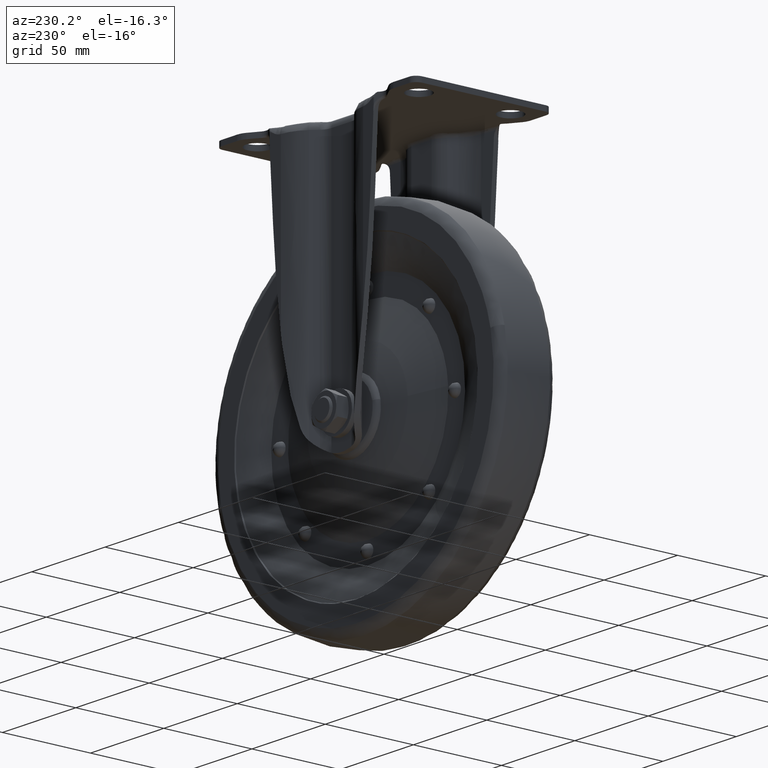
[diagram: clean part render]
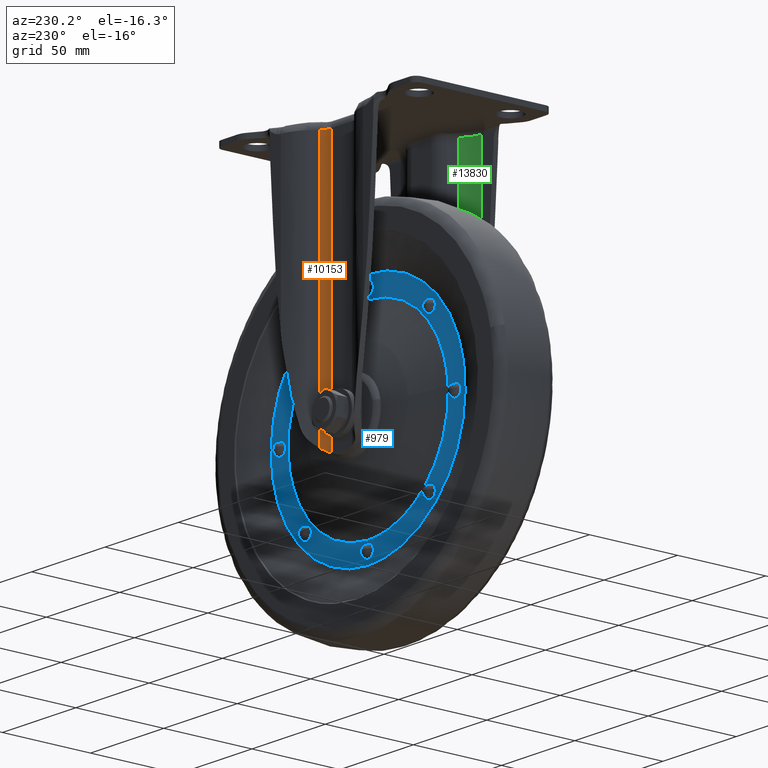
[diagram: same view with three faces highlighted in distinct colors, each labeled with its STEP entity id]
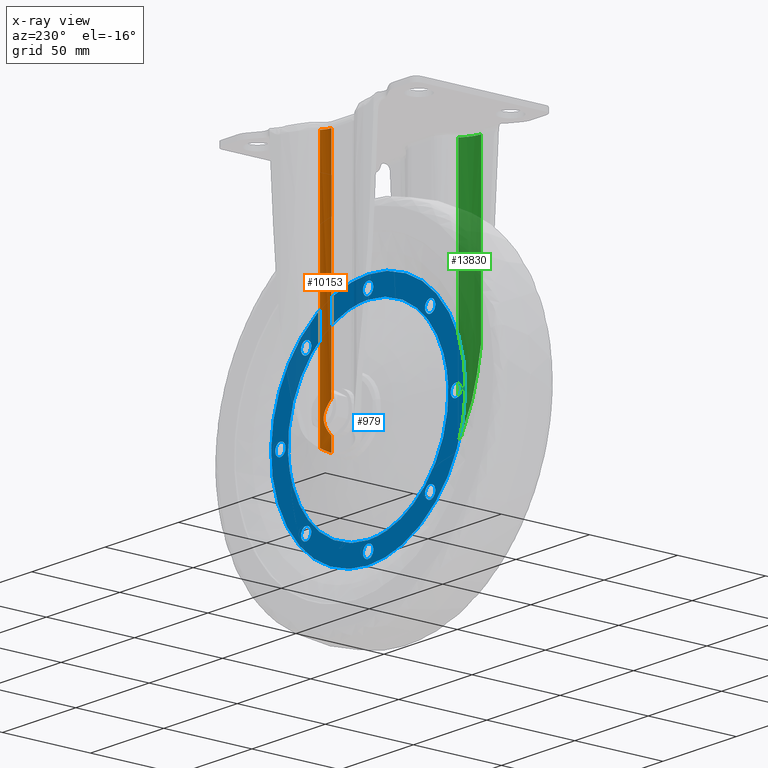
[diagram: x-ray of the same camera — body ghosted, the three highlighted faces saturated]
A machine part, auxiliary view with three faces highlighted in distinct colors.
The next image is the same camera in x-ray (body ghosted, the three faces saturated) — at least one of them is partly hidden behind the body in this view.
Their STEP definitions:

[orange] entity #10153 — the highlighted face is a freeform B-spline surface patch.
#6401=CARTESIAN_POINT('',(6.849839999999920,24.149999999999999,-127.714941643271200));
#6402=VERTEX_POINT('',#6401);
#6403=CARTESIAN_POINT('',(6.849839999999920,24.149999999999999,-144.285058356728800));
#6404=VERTEX_POINT('',#6403);
#6405=CARTESIAN_POINT('',(6.849839999999889,24.149999999999999,-127.714941643271200));
#6406=CARTESIAN_POINT('',(7.156355836577821,24.149999999999999,-127.968359826659100));
#6407=CARTESIAN_POINT('',(7.447116187730278,24.169678020017042,-128.237289490280690));
#6408=CARTESIAN_POINT('',(7.860202809812048,24.220708880656129,-128.663864076951910));
#6409=CARTESIAN_POINT('',(7.994045582492561,24.241326928974491,-128.809928640998890));
#6410=CARTESIAN_POINT('',(8.254000069798893,24.288626357566660,-129.109907564461990));
#6411=CARTESIAN_POINT('',(8.380356875495256,24.315385787115151,-129.264186107059690));
#6412=CARTESIAN_POINT('',(8.743291326134363,24.401957536736180,-129.733131768554810));
#6413=CARTESIAN_POINT('',(8.965308917489910,24.468230787571621,-130.055465480149110));
#6414=CARTESIAN_POINT('',(9.372063010136877,24.608390018432122,-130.719972577936010));
#6415=CARTESIAN_POINT('',(9.556789222945078,24.682318269051329,-131.062143316347090));
#6416=CARTESIAN_POINT('',(9.806341493513585,24.792428004514569,-131.591348989473400));
#6417=CARTESIAN_POINT('',(9.884921466596325,24.829002732579472,-131.770417130202900));
#6418=CARTESIAN_POINT('',(9.995805296687326,24.882843663266492,-132.043232078573200));
#6419=CARTESIAN_POINT('',(10.031601260762081,24.900620245968192,-132.134873107345100));
#6420=CARTESIAN_POINT('',(10.100837227975919,24.935691365087639,-132.319603683679790));
#6421=CARTESIAN_POINT('',(10.134206280081351,24.952950621713121,-132.412514479551590));
#6422=CARTESIAN_POINT('',(10.294191434117231,25.037194643112731,-132.877957190488790));
#6423=CARTESIAN_POINT('',(10.400976379099619,25.098316213904930,-133.254925014710690));
#6424=CARTESIAN_POINT('',(10.573089556565430,25.200633238702771,-134.018706598634000));
#6425=CARTESIAN_POINT('',(10.638414859826220,25.241812869742599,-134.405522607085600));
#6426=CARTESIAN_POINT('',(10.704619813224200,25.284119250478639,-134.993746117573010));
#6427=CARTESIAN_POINT('',(10.721376763886630,25.294989798191750,-135.191155186461290));
#6428=CARTESIAN_POINT('',(10.738326512402381,25.306022167163398,-135.489357145907890));
#6429=CARTESIAN_POINT('',(10.742611197249779,25.308821797863189,-135.589105918465290));
#6430=CARTESIAN_POINT('',(10.748401789420649,25.312608585633161,-135.789314797160500));
#6431=CARTESIAN_POINT('',(10.749904378020601,25.313593529010411,-135.889964692815990));
#6432=CARTESIAN_POINT('',(10.750360261574659,25.313892147242569,-136.391260441356910));
#6433=CARTESIAN_POINT('',(10.728358175883820,25.299314148041251,-136.787901710736090));
#6434=CARTESIAN_POINT('',(10.641628918109070,25.243842546116539,-137.572956523588400));
#6435=CARTESIAN_POINT('',(10.576899266653220,25.202973407809129,-137.961371789590490));
#6436=CARTESIAN_POINT('',(10.447910644827621,25.126182268697260,-138.538204583200700));
#6437=CARTESIAN_POINT('',(10.399584989189680,25.098019458558269,-138.729516541222300));
#6438=CARTESIAN_POINT('',(10.318992281992649,25.052575914836019,-139.015075522805800));
#6439=CARTESIAN_POINT('',(10.290731123682029,25.036871221354669,-139.110166174041610));
#6440=CARTESIAN_POINT('',(10.231768655031710,25.004672686759449,-139.298968153829410));
#6441=CARTESIAN_POINT('',(10.201062292616170,24.988175181632670,-139.392715282543690));
#6442=CARTESIAN_POINT('',(10.041472714710650,24.904044234878430,-139.858283024814910));
#6443=CARTESIAN_POINT('',(9.894496385007287,24.831487584678730,-140.220638924831690));
#6444=CARTESIAN_POINT('',(9.562350541303267,24.684614101538440,-140.927098920456590));
#6445=CARTESIAN_POINT('',(9.377183228755502,24.610272090883150,-141.271199009284690));
#6446=CARTESIAN_POINT('',(9.120842081233677,24.521796150455451,-141.690553795371610));
#6447=CARTESIAN_POINT('',(9.068324553735494,24.504325196365070,-141.773884131682910));
#6448=CARTESIAN_POINT('',(8.960743800522836,24.469980476100751,-141.939471249141210));
#6449=CARTESIAN_POINT('',(8.905696643359883,24.453114533246101,-142.021694591576700));
#6450=CARTESIAN_POINT('',(8.737624198483355,24.403910541734160,-142.265411175428000));
#6451=CARTESIAN_POINT('',(8.621380082625073,24.372870514333581,-142.424408229628510));
#6452=CARTESIAN_POINT('',(8.260068230292715,24.286707440441401,-142.891199848423700));
#6453=CARTESIAN_POINT('',(8.002471619365663,24.238486617818420,-143.188832143311400));
#6454=CARTESIAN_POINT('',(7.590141820542380,24.187248297397929,-143.615204333760200));
#6455=CARTESIAN_POINT('',(7.448363840827089,24.173694954539400,-143.753972979078300));
#6456=CARTESIAN_POINT('',(7.228965452894769,24.159726363846239,-143.957040197036690));
#6457=CARTESIAN_POINT('',(7.154709829653092,24.156131922442022,-144.023881037366290));
#6458=CARTESIAN_POINT('',(7.003902627942009,24.151267616524070,-144.155849902165190));
#6459=CARTESIAN_POINT('',(6.927193133040529,24.149999999999999,-144.221105085428490));
#6460=CARTESIAN_POINT('',(6.849839999999918,24.149999999999999,-144.285058356728800));
#6461=B_SPLINE_CURVE_WITH_KNOTS('',3,(#6405,#6406,#6407,#6408,#6409,#6410,#6411,#6412,#6413,#6414,#6415,#6416,#6417,#6418,#6419,#6420,#6421,#6422,#6423,#6424,#6425,#6426,#6427,#6428,#6429,#6430,#6431,#6432,#6433,#6434,#6435,#6436,#6437,#6438,#6439,#6440,#6441,#6442,#6443,#6444,#6445,#6446,#6447,#6448,#6449,#6450,#6451,#6452,#6453,#6454,#6455,#6456,#6457,#6458,#6459,#6460),.UNSPECIFIED.,.F.,.U.,(4,2,2,2,2,2,2,2,2,2,2,2,2,2,2,2,2,2,2,2,2,2,2,2,2,2,2,4),(0.0,0.062500000000011,0.093750000000017,0.125000000000024,0.187500000000038,0.250000000000052,0.281250000000061,0.296875000000063,0.312500000000066,0.375000000000071,0.437500000000077,0.468750000000080,0.484375000000079,0.500000000000078,0.562500000000063,0.625000000000047,0.656250000000041,0.671875000000040,0.687500000000039,0.750000000000031,0.812500000000023,0.828125000000020,0.843750000000018,0.875000000000012,0.937500000000004,0.968750000000002,0.984375000000001,1.0),.UNSPECIFIED.);
#6462=EDGE_CURVE('',#6402,#6404,#6461,.T.);
#8485=CARTESIAN_POINT('',(6.849840000000000,24.149999999999402,-152.286718354286510));
#8486=VERTEX_POINT('',#8485);
#8500=CARTESIAN_POINT('',(11.970380567922980,26.323798931978150,-149.423246202314000));
#8501=VERTEX_POINT('',#8500);
#8502=CARTESIAN_POINT('',(11.970380567922980,26.323798931978150,-149.423246202314000));
#8503=CARTESIAN_POINT('',(11.808036436092470,26.155658390774651,-149.550723451067200));
#8504=CARTESIAN_POINT('',(11.637690369744620,25.995745176110091,-149.680191325374010));
#8505=CARTESIAN_POINT('',(11.369634462091881,25.767956006054881,-149.876343656285290));
#8506=CARTESIAN_POINT('',(11.278069331745410,25.693970609396100,-149.942133843306810));
#8507=CARTESIAN_POINT('',(11.092325544284900,25.551323331926909,-150.073033694714610));
#8508=CARTESIAN_POINT('',(10.997962244074920,25.482494811139091,-150.138281764127410));
#8509=CARTESIAN_POINT('',(10.710364492989431,25.283335342302440,-150.333224944834310));
#8510=CARTESIAN_POINT('',(10.512632716370220,25.160306213264629,-150.462114547865010));
#8511=CARTESIAN_POINT('',(10.104734646749700,24.933513009606681,-150.716848598501510));
#8512=CARTESIAN_POINT('',(9.894569735345506,24.829749228186760,-150.842695540200790));
#8513=CARTESIAN_POINT('',(9.569405677818399,24.688971124017019,-151.028597554499300));
#8514=CARTESIAN_POINT('',(9.459361993647672,24.644529036832040,-151.090087495253190));
#8515=CARTESIAN_POINT('',(9.291709866764080,24.581701735278799,-151.181536920963310));
#8516=CARTESIAN_POINT('',(9.235394506216533,24.561399025801240,-151.211889167415590));
#8517=CARTESIAN_POINT('',(9.121881155206379,24.522096677298030,-151.272320458684500));
#8518=CARTESIAN_POINT('',(9.064609988795258,24.503075122695609,-151.302436869995800));
#8519=CARTESIAN_POINT('',(8.777456485417748,24.411745567064461,-151.451553603913400));
#8520=CARTESIAN_POINT('',(8.311498534668555,24.289180044842059,-151.681546856930710));
#8521=CARTESIAN_POINT('',(7.832303633165637,24.213897418356531,-151.893900526279310));
#8522=CARTESIAN_POINT('',(7.346277844385608,24.163130698162561,-152.097184131552610));
#8523=CARTESIAN_POINT('',(7.099850408234761,24.150000000000009,-152.194291517547700));
#8524=CARTESIAN_POINT('',(6.849839999999883,24.149999999999999,-152.286718354286390));
#8525=B_SPLINE_CURVE_WITH_KNOTS('',3,(#8502,#8503,#8504,#8505,#8506,#8507,#8508,#8509,#8510,#8511,#8512,#8513,#8514,#8515,#8516,#8517,#8518,#8519,#8520,#8521,#8522,#8523,#8524),.UNSPECIFIED.,.F.,.U.,(4,2,2,2,2,2,2,2,2,1,2,4),(0.0,0.125000000000005,0.187500000000008,0.250000000000011,0.375000000000017,0.500000000000023,0.562500000000029,0.593750000000030,0.625000000000030,0.750000000000020,0.875000000000010,1.0),.UNSPECIFIED.);
#8526=EDGE_CURVE('',#8501,#8486,#8525,.T.);
#10084=CARTESIAN_POINT('',(11.970380356495619,26.323799261984352,-4.700000000000000));
#10085=VERTEX_POINT('',#10084);
#10086=CARTESIAN_POINT('',(11.970380567922980,26.323798931978150,-149.423246202314000));
#10087=CARTESIAN_POINT('',(11.970380356495619,26.323799261984352,-4.700000000000000));
#10088=QUASI_UNIFORM_CURVE('',1,(#10086,#10087),.UNSPECIFIED.,.F.,.U.);
#10089=EDGE_CURVE('',#8501,#10085,#10088,.T.);
#10109=CARTESIAN_POINT('',(12.157993674472076,26.525798164468114,-155.976386313143710));
#10110=CARTESIAN_POINT('',(12.157993674472076,26.525798164468114,-0.918090342171382));
#10111=CARTESIAN_POINT('',(9.923538150100592,24.024568997228300,-155.976386313143730));
#10112=CARTESIAN_POINT('',(9.923538150100592,24.024568997228300,-0.918090342171382));
#10113=CARTESIAN_POINT('',(6.572147823432000,24.155418971464414,-155.976386313143710));
#10114=CARTESIAN_POINT('',(6.572147823432000,24.155418971464414,-0.918090342171382));
#10122=(BOUNDED_SURFACE()B_SPLINE_SURFACE(1,2,((#10109,#10111,#10113),(#10110,#10112,#10114)),.UNSPECIFIED.,.F.,.F.,.U.)B_SPLINE_SURFACE_WITH_KNOTS((2,2),(3,3),(0.0,155.058295970972300),(0.0,6.371882506645640),.UNSPECIFIED.)GEOMETRIC_REPRESENTATION_ITEM()RATIONAL_B_SPLINE_SURFACE(((0.998873351658014,0.900082269315921,0.991145396840404),(0.998873351658014,0.900082269315921,0.991145396840404)))REPRESENTATION_ITEM('')SURFACE());
#10123=ORIENTED_EDGE('',*,*,#6462,.F.);
#10124=CARTESIAN_POINT('',(6.849839999999920,24.149999999999999,-4.700000000000000));
#10125=VERTEX_POINT('',#10124);
#10126=CARTESIAN_POINT('',(6.849839999999920,24.149999999999999,-127.714941643271200));
#10127=CARTESIAN_POINT('',(6.849839999999920,24.149999999999999,-4.700000000000000));
#10128=QUASI_UNIFORM_CURVE('',1,(#10126,#10127),.UNSPECIFIED.,.F.,.U.);
#10129=EDGE_CURVE('',#6402,#10125,#10128,.T.);
#10130=ORIENTED_EDGE('',*,*,#10129,.T.);
#10131=CARTESIAN_POINT('',(6.849839999999920,24.149999999999999,-4.700000000000000));
#10132=CARTESIAN_POINT('',(9.871526640419507,24.149999999999995,-4.700000000000001));
#10133=CARTESIAN_POINT('',(11.970380356495600,26.323799261984369,-4.700000000000000));
#10141=(BOUNDED_CURVE()B_SPLINE_CURVE(2,(#10131,#10132,#10133),.UNSPECIFIED.,.F.,.U.)CURVE()GEOMETRIC_REPRESENTATION_ITEM()QUASI_UNIFORM_CURVE()RATIONAL_B_SPLINE_CURVE((1.0,0.920488117445491,1.0))REPRESENTATION_ITEM(''));
#10142=EDGE_CURVE('',#10125,#10085,#10141,.T.);
#10143=ORIENTED_EDGE('',*,*,#10142,.T.);
#10144=ORIENTED_EDGE('',*,*,#10089,.F.);
#10145=ORIENTED_EDGE('',*,*,#8526,.T.);
#10146=CARTESIAN_POINT('',(6.849840000000000,24.149999999999402,-152.286718354286510));
#10147=CARTESIAN_POINT('',(6.849839999999920,24.149999999999999,-144.285058356728800));
#10148=QUASI_UNIFORM_CURVE('',1,(#10146,#10147),.UNSPECIFIED.,.F.,.U.);
#10149=EDGE_CURVE('',#8486,#6404,#10148,.T.);
#10150=ORIENTED_EDGE('',*,*,#10149,.T.);
#10151=EDGE_LOOP('',(#10123,#10130,#10143,#10144,#10145,#10150));
#10152=FACE_OUTER_BOUND('',#10151,.T.);
#10153=ADVANCED_FACE('',(#10152),#10122,.F.);

[blue] entity #979 — the highlighted face is a freeform B-spline surface patch.
#57=CARTESIAN_POINT('',(-54.508440782267073,8.999999999995405,-132.666120941338110));
#58=VERTEX_POINT('',#57);
#64=CARTESIAN_POINT('',(0.0,9.0,-81.389700000000005));
#65=VERTEX_POINT('',#64);
#66=CARTESIAN_POINT('',(0.0,9.0,-81.389700000000005));
#67=CARTESIAN_POINT('',(-51.372240525452938,8.999999999997701,-81.389699999999507));
#68=CARTESIAN_POINT('',(-54.508440782267073,8.999999999995405,-132.666120941338190));
#76=(BOUNDED_CURVE()B_SPLINE_CURVE(2,(#66,#67,#68),.UNSPECIFIED.,.F.,.U.)B_SPLINE_CURVE_WITH_KNOTS((3,3),(0.500000000000000,0.739332962241650),.UNSPECIFIED.)CURVE()GEOMETRIC_REPRESENTATION_ITEM()RATIONAL_B_SPLINE_CURVE((1.0,0.719603993283539,0.976072041672520))REPRESENTATION_ITEM(''));
#77=EDGE_CURVE('',#65,#58,#76,.T.);
#79=CARTESIAN_POINT('',(54.508440782267073,8.999999999995406,-139.333879058661890));
#80=VERTEX_POINT('',#79);
#81=CARTESIAN_POINT('',(54.508440782267080,8.999999999995406,-139.333879058661860));
#82=CARTESIAN_POINT('',(54.610300000015322,8.999999999995472,-137.668495569616250));
#83=CARTESIAN_POINT('',(54.610300000015073,8.999999999995541,-136.000000000000910));
#84=CARTESIAN_POINT('',(54.610300000007314,8.999999999997838,-81.389700000000445));
#85=CARTESIAN_POINT('',(0.0,9.0,-81.389700000000005));
#93=(BOUNDED_CURVE()B_SPLINE_CURVE(2,(#81,#82,#83,#84,#85),.UNSPECIFIED.,.F.,.U.)B_SPLINE_CURVE_WITH_KNOTS((3,2,3),(0.239332962241650,0.250000000000000,0.500000000000000),.UNSPECIFIED.)CURVE()GEOMETRIC_REPRESENTATION_ITEM()RATIONAL_B_SPLINE_CURVE((0.976072041672520,0.987502787903009,1.0,0.707106781186548,1.0))REPRESENTATION_ITEM(''));
#94=EDGE_CURVE('',#80,#65,#93,.T.);
#138=CARTESIAN_POINT('',(0.0,9.0,-190.610300000000000));
#139=VERTEX_POINT('',#138);
#140=CARTESIAN_POINT('',(0.0,9.0,-190.610300000000000));
#141=CARTESIAN_POINT('',(51.372240525452909,8.999999999997701,-190.610300000000560));
#142=CARTESIAN_POINT('',(54.508440782267080,8.999999999995406,-139.333879058661860));
#150=(BOUNDED_CURVE()B_SPLINE_CURVE(2,(#140,#141,#142),.UNSPECIFIED.,.F.,.U.)B_SPLINE_CURVE_WITH_KNOTS((3,3),(0.0,0.239332962241650),.UNSPECIFIED.)CURVE()GEOMETRIC_REPRESENTATION_ITEM()RATIONAL_B_SPLINE_CURVE((1.0,0.719603993283539,0.976072041672520))REPRESENTATION_ITEM(''));
#151=EDGE_CURVE('',#139,#80,#150,.T.);
#153=CARTESIAN_POINT('',(-54.508440782267073,8.999999999995405,-132.666120941338190));
#154=CARTESIAN_POINT('',(-54.610300000015322,8.999999999995469,-134.331504430383660));
#155=CARTESIAN_POINT('',(-54.610300000015073,8.999999999995540,-135.999999999999090));
#156=CARTESIAN_POINT('',(-54.610300000007314,8.999999999997838,-190.610299999999600));
#157=CARTESIAN_POINT('',(0.0,9.0,-190.610300000000000));
#165=(BOUNDED_CURVE()B_SPLINE_CURVE(2,(#153,#154,#155,#156,#157),.UNSPECIFIED.,.F.,.U.)B_SPLINE_CURVE_WITH_KNOTS((3,2,3),(0.739332962241650,0.750000000000000,1.0),.UNSPECIFIED.)CURVE()GEOMETRIC_REPRESENTATION_ITEM()RATIONAL_B_SPLINE_CURVE((0.976072041672520,0.987502787903009,1.0,0.707106781186548,1.0))REPRESENTATION_ITEM(''));
#166=EDGE_CURVE('',#58,#139,#165,.T.);
#231=CARTESIAN_POINT('',(-42.249630175896193,9.0,-181.749630175895990));
#232=VERTEX_POINT('',#231);
#233=CARTESIAN_POINT('',(-42.249630175896193,9.0,-174.749630175895990));
#234=VERTEX_POINT('',#233);
#235=CARTESIAN_POINT('',(-42.249630175896193,9.0,-181.749630175895990));
#236=CARTESIAN_POINT('',(-42.707839770385092,9.0,-181.750102801964800));
#237=CARTESIAN_POINT('',(-43.365995746328593,8.999999999999995,-181.618442343147310));
#238=CARTESIAN_POINT('',(-44.310044907085747,9.000000000000025,-181.128685238527990));
#239=CARTESIAN_POINT('',(-44.955959126193477,8.999999999999982,-180.543341671335300));
#240=CARTESIAN_POINT('',(-45.469692867933013,9.000000000000018,-179.709165554230000));
#241=CARTESIAN_POINT('',(-45.766586555795769,8.999999999999986,-178.772659635119910));
#242=CARTESIAN_POINT('',(-45.766627226714391,9.000000000000039,-177.813819463620890));
#243=CARTESIAN_POINT('',(-45.528494519657947,8.999999999999975,-176.954220119789110));
#244=CARTESIAN_POINT('',(-45.196787740675752,9.000000000000011,-176.314904206466790));
#245=CARTESIAN_POINT('',(-44.612904646493732,8.999999999999996,-175.602803709044110));
#246=CARTESIAN_POINT('',(-43.652253493154788,9.000000000000005,-174.943955988987310));
#247=CARTESIAN_POINT('',(-42.736490434249284,8.999999999999996,-174.749001804664600));
#248=CARTESIAN_POINT('',(-42.249630175896193,9.0,-174.749630175895990));
#249=B_SPLINE_CURVE_WITH_KNOTS('',3,(#235,#236,#237,#238,#239,#240,#241,#242,#243,#244,#245,#246,#247,#248),.UNSPECIFIED.,.F.,.U.,(4,1,1,1,1,1,1,1,1,1,1,4),(0.000001130673960,1.374385654285948,1.975767245802340,3.178528806412699,3.951664060769027,4.896725372617738,6.099120946853861,6.786397723986452,7.559633707723712,8.246893514483814,9.535556875971931,10.995850211889950),.UNSPECIFIED.);
#250=EDGE_CURVE('',#232,#234,#249,.T.);
#252=CARTESIAN_POINT('',(-42.249630175896193,9.0,-174.749630175895990));
#253=CARTESIAN_POINT('',(-41.791406886030217,9.000000000000004,-174.749085898895490));
#254=CARTESIAN_POINT('',(-41.133267480821118,8.999999999999993,-174.880876841871900));
#255=CARTESIAN_POINT('',(-40.291416367412069,9.000000000000002,-175.317738808003500));
#256=CARTESIAN_POINT('',(-39.577423792992221,9.000000000000007,-175.903249054073710));
#257=CARTESIAN_POINT('',(-39.037458827789223,8.999999999999993,-176.733180783826700));
#258=CARTESIAN_POINT('',(-38.781075778902569,9.000000000000012,-177.618788859500200));
#259=CARTESIAN_POINT('',(-38.723888523482707,8.999999999999968,-178.393437302373090));
#260=CARTESIAN_POINT('',(-38.854925601037429,9.000000000000023,-179.278129237495310));
#261=CARTESIAN_POINT('',(-39.253416376652382,8.999999999999991,-180.148245758523590));
#262=CARTESIAN_POINT('',(-39.931998589124603,9.000000000000011,-180.934741443442500));
#263=CARTESIAN_POINT('',(-40.904196148570080,8.999999999999986,-181.567491054177110));
#264=CARTESIAN_POINT('',(-41.762810574646188,9.000000000000007,-181.750227795451590));
#265=CARTESIAN_POINT('',(-42.249630175896193,9.0,-181.749630175895990));
#266=B_SPLINE_CURVE_WITH_KNOTS('',3,(#252,#253,#254,#255,#256,#257,#258,#259,#260,#261,#262,#263,#264,#265),.UNSPECIFIED.,.F.,.U.,(4,1,1,1,1,1,1,1,1,1,1,4),(0.000001130687219,1.374385654299577,1.975767245815796,2.834880511755973,4.123551150823054,4.896725372626412,5.583735549867149,6.442758146405573,7.559633707725666,8.418708807017373,9.535556875972153,10.995850211889930),.UNSPECIFIED.);
#267=EDGE_CURVE('',#234,#232,#266,.T.);
#316=CARTESIAN_POINT('',(-59.750000000000000,9.0,-139.500000000000000));
#317=VERTEX_POINT('',#316);
#318=CARTESIAN_POINT('',(-59.750000000000000,9.0,-132.500000000000000));
#319=VERTEX_POINT('',#318);
#320=CARTESIAN_POINT('',(-59.750000000000000,9.0,-139.500000000000000));
#321=CARTESIAN_POINT('',(-60.208215170614963,8.999999999999989,-139.500483540270610));
#322=CARTESIAN_POINT('',(-60.866365695433323,9.000000000000016,-139.368804763469910));
#323=CARTESIAN_POINT('',(-61.708199555485102,8.999999999999988,-138.931872766800100));
#324=CARTESIAN_POINT('',(-62.422248337896391,9.000000000000053,-138.346407468344890));
#325=CARTESIAN_POINT('',(-62.930374403657197,8.999999999999933,-137.565273342164890));
#326=CARTESIAN_POINT('',(-63.207809324420850,9.000000000000053,-136.688395921908810));
#327=CARTESIAN_POINT('',(-63.295798523154751,9.000000000000020,-135.798401191793890));
#328=CARTESIAN_POINT('',(-63.091693269533351,8.999999999999938,-134.772437883254700));
#329=CARTESIAN_POINT('',(-62.535216034435336,9.000000000000130,-133.790102950680700));
#330=CARTESIAN_POINT('',(-61.748982213963863,8.999999999999979,-133.059728388735810));
#331=CARTESIAN_POINT('',(-60.780718267765572,8.999999999999996,-132.601971799977010));
#332=CARTESIAN_POINT('',(-60.093585827736540,9.0,-132.499877228608310));
#333=CARTESIAN_POINT('',(-59.750000000000000,9.0,-132.500000000000000));
#334=B_SPLINE_CURVE_WITH_KNOTS('',3,(#320,#321,#322,#323,#324,#325,#326,#327,#328,#329,#330,#331,#332,#333),.UNSPECIFIED.,.F.,.U.,(4,1,1,1,1,1,1,1,1,1,1,4),(0.000001130693306,1.374385654303570,1.975767245818668,2.834880511757413,4.123551150823441,4.724870310616035,5.583735549866611,6.786397723989028,7.817366248059654,8.934184277408368,9.965101147617485,10.995850211889939),.UNSPECIFIED.);
#335=EDGE_CURVE('',#317,#319,#334,.T.);
#337=CARTESIAN_POINT('',(-59.750000000000000,9.0,-132.500000000000000));
#338=CARTESIAN_POINT('',(-59.377756381191340,9.0,-132.499768633117410));
#339=CARTESIAN_POINT('',(-58.805263779502638,9.000000000000005,-132.592282643555900));
#340=CARTESIAN_POINT('',(-57.933429232763629,9.0,-132.965837950800990));
#341=CARTESIAN_POINT('',(-57.287195717093716,9.000000000000005,-133.457491166966010));
#342=CARTESIAN_POINT('',(-56.756240085842073,9.000000000000002,-134.138164482083400));
#343=CARTESIAN_POINT('',(-56.402329598539552,9.000000000000028,-134.863091695818610));
#344=CARTESIAN_POINT('',(-56.222785692672197,8.999999999999899,-135.711120888938810));
#345=CARTESIAN_POINT('',(-56.263935900142229,8.999999999999991,-136.546732150404410));
#346=CARTESIAN_POINT('',(-56.471149162110741,9.000000000000034,-137.295360722535490));
#347=CARTESIAN_POINT('',(-56.908620742399542,9.000000000000039,-138.139667721856200));
#348=CARTESIAN_POINT('',(-57.672335087267399,8.999999999999824,-138.903291931324110));
#349=CARTESIAN_POINT('',(-58.719304829980402,9.000000000000286,-139.398002403006810));
#350=CARTESIAN_POINT('',(-59.406413067544932,8.999999999999922,-139.500137985907600));
#351=CARTESIAN_POINT('',(-59.750000000000000,9.0,-139.500000000000000));
#352=B_SPLINE_CURVE_WITH_KNOTS('',3,(#337,#338,#339,#340,#341,#342,#343,#344,#345,#346,#347,#348,#349,#350,#351),.UNSPECIFIED.,.F.,.U.,(4,1,1,1,1,1,1,1,1,1,1,1,4),(0.000001130754363,1.116653910187583,1.718029764481640,2.834880511800682,3.522174925637261,4.295271385798750,5.240366323841913,6.099120946884771,6.786397724012867,7.559633707745427,8.934184277420957,9.965101147622825,10.995850211888911),.UNSPECIFIED.);
#353=EDGE_CURVE('',#319,#317,#352,.T.);
#402=CARTESIAN_POINT('',(-42.249630175896193,9.0,-97.250369824103799));
#403=VERTEX_POINT('',#402);
#404=CARTESIAN_POINT('',(-42.249630175896193,9.0,-90.250369824103799));
#405=VERTEX_POINT('',#404);
#406=CARTESIAN_POINT('',(-42.249630175896193,9.0,-97.250369824103799));
#407=CARTESIAN_POINT('',(-42.564610000101702,9.000000000000002,-97.250463483578073));
#408=CARTESIAN_POINT('',(-43.223162873187057,9.000000000000014,-97.160913818830210));
#409=CARTESIAN_POINT('',(-44.043499568914903,8.999999999999968,-96.797358401912007));
#410=CARTESIAN_POINT('',(-44.723966611569232,9.000000000000048,-96.266175088047547));
#411=CARTESIAN_POINT('',(-45.218174223413769,8.999999999999886,-95.664039636166351));
#412=CARTESIAN_POINT('',(-45.597254527265463,9.000000000000160,-94.887268966961656));
#413=CARTESIAN_POINT('',(-45.800981162693986,8.999999999999814,-93.926156575940482));
#414=CARTESIAN_POINT('',(-45.698360614943979,9.000000000000011,-92.885143239124432));
#415=CARTESIAN_POINT('',(-45.277050118523889,9.000000000000052,-91.902498206625367));
#416=CARTESIAN_POINT('',(-44.579372880096983,8.999999999999963,-91.051936028260599));
#417=CARTESIAN_POINT('',(-43.538007249162192,9.000000000000012,-90.410392469950040));
#418=CARTESIAN_POINT('',(-42.679166818843044,9.000000000000002,-90.250040225850597));
#419=CARTESIAN_POINT('',(-42.249630175896193,9.0,-90.250369824103799));
#420=B_SPLINE_CURVE_WITH_KNOTS('',3,(#406,#407,#408,#409,#410,#411,#412,#413,#414,#415,#416,#417,#418,#419),.UNSPECIFIED.,.F.,.U.,(4,1,1,1,1,1,1,1,1,1,1,4),(0.000001130688686,0.944953520614394,1.975767245814920,2.663061278057729,3.522174925597160,4.295271385764512,5.240366323813122,6.442758146405556,7.387775334998016,8.418708807016479,9.707313002990453,10.995850211889961),.UNSPECIFIED.);
#421=EDGE_CURVE('',#403,#405,#420,.T.);
#423=CARTESIAN_POINT('',(-42.249630175896193,9.0,-90.250369824103799));
#424=CARTESIAN_POINT('',(-41.791442650127273,8.999999999999988,-90.249900866703186));
#425=CARTESIAN_POINT('',(-41.018701437799962,9.000000000000036,-90.404397891619439));
#426=CARTESIAN_POINT('',(-40.119969933343732,8.999999999999975,-90.928332721727088));
#427=CARTESIAN_POINT('',(-39.563248653872947,8.999999999999988,-91.471644161299494));
#428=CARTESIAN_POINT('',(-39.156738659700707,9.000000000000028,-92.064160742761075));
#429=CARTESIAN_POINT('',(-38.872978095423413,8.999999999999989,-92.726165976907467));
#430=CARTESIAN_POINT('',(-38.704007702867692,9.000000000000030,-93.632485280131220));
#431=CARTESIAN_POINT('',(-38.800889792516713,8.999999999999886,-94.615588738017408));
#432=CARTESIAN_POINT('',(-39.199468475647087,9.000000000000222,-95.545124928499476));
#433=CARTESIAN_POINT('',(-39.714293914157011,8.999999999999815,-96.204715374838258));
#434=CARTESIAN_POINT('',(-40.270408688923858,9.000000000000082,-96.661022547799135));
#435=CARTESIAN_POINT('',(-41.076087685385772,8.999999999999933,-97.104639366377029));
#436=CARTESIAN_POINT('',(-41.762738178557832,9.000000000000037,-97.251034581480639));
#437=CARTESIAN_POINT('',(-42.249630175896193,9.0,-97.250369824103799));
#438=B_SPLINE_CURVE_WITH_KNOTS('',3,(#423,#424,#425,#426,#427,#428,#429,#430,#431,#432,#433,#434,#435,#436,#437),.UNSPECIFIED.,.F.,.U.,(4,1,1,1,1,1,1,1,1,1,1,1,4),(0.000001130690658,1.374385654300623,2.319412919459319,3.092604431678388,3.693959236050706,4.467191066779854,5.240366323811523,6.442758146404029,7.387775334997231,8.246893514484086,8.934184277408413,9.535556875971944,10.995850211889939),.UNSPECIFIED.);
#439=EDGE_CURVE('',#405,#403,#438,.T.);
#488=CARTESIAN_POINT('',(1.421085E-014,9.0,-79.750000000000000));
#489=VERTEX_POINT('',#488);
#490=CARTESIAN_POINT('',(1.421085E-014,9.0,-72.750000000000000));
#491=VERTEX_POINT('',#490);
#492=CARTESIAN_POINT('',(1.421085E-014,9.0,-79.750000000000000));
#493=CARTESIAN_POINT('',(-0.458185386573383,8.999999999999995,-79.750459088096832));
#494=CARTESIAN_POINT('',(-1.345487297621638,9.000000000000030,-79.573196664238324));
#495=CARTESIAN_POINT('',(-2.346475910017272,8.999999999999973,-78.922278294775566));
#496=CARTESIAN_POINT('',(-2.931885599364819,9.000000000000027,-78.208179110988851));
#497=CARTESIAN_POINT('',(-3.276061293112208,9.000000000000004,-77.544888102613740));
#498=CARTESIAN_POINT('',(-3.468559569386072,8.999999999999998,-76.880879296085453));
#499=CARTESIAN_POINT('',(-3.534457085535310,8.999999999999975,-75.991364641086065));
#500=CARTESIAN_POINT('',(-3.341683092079099,9.000000000000016,-75.022455893742730));
#501=CARTESIAN_POINT('',(-2.785226270810852,9.0,-74.040070019505166));
#502=CARTESIAN_POINT('',(-2.105197285959181,9.000000000000004,-73.408521194069635));
#503=CARTESIAN_POINT('',(-1.173505990069156,9.000000000000004,-72.895790691916872));
#504=CARTESIAN_POINT('',(-0.486903882137741,9.000000000000002,-72.749314732290145));
#505=CARTESIAN_POINT('',(1.421085E-014,9.0,-72.750000000000000));
#506=B_SPLINE_CURVE_WITH_KNOTS('',3,(#492,#493,#494,#495,#496,#497,#498,#499,#500,#501,#502,#503,#504,#505),.UNSPECIFIED.,.F.,.U.,(4,1,1,1,1,1,1,1,1,1,1,4),(0.000001130701188,1.374385654307682,2.663061278062276,3.522174925599203,4.123551150823922,4.896725372626125,5.583735549865341,6.786397723988462,7.817366248059599,8.934184277408081,9.535556875971848,10.995850211889930),.UNSPECIFIED.);
#507=EDGE_CURVE('',#489,#491,#506,.T.);
#509=CARTESIAN_POINT('',(1.421085E-014,9.0,-72.750000000000000));
#510=CARTESIAN_POINT('',(0.458180986161086,9.000000000000016,-72.749539004953903));
#511=CARTESIAN_POINT('',(1.230919738596864,8.999999999999977,-72.904033747526782));
#512=CARTESIAN_POINT('',(2.254624856880974,9.000000000000020,-73.500631596390889));
#513=CARTESIAN_POINT('',(2.879147736927442,8.999999999999996,-74.189563415497204));
#514=CARTESIAN_POINT('',(3.276021716447103,9.000000000000002,-74.955140366595458));
#515=CARTESIAN_POINT('',(3.484671686974680,8.999999999999996,-75.674431309672443));
#516=CARTESIAN_POINT('',(3.531585346373176,9.000000000000004,-76.625386195227080));
#517=CARTESIAN_POINT('',(3.291543375406039,9.000000000000007,-77.583629610176416));
#518=CARTESIAN_POINT('',(2.742652028021172,9.000000000000002,-78.499410138778302));
#519=CARTESIAN_POINT('',(2.041461013000312,9.000000000000004,-79.150694405734399));
#520=CARTESIAN_POINT('',(1.087891595575184,8.999999999999993,-79.630569105661650));
#521=CARTESIAN_POINT('',(0.400900030719155,9.000000000000007,-79.750301230467301));
#522=CARTESIAN_POINT('',(1.421085E-014,9.0,-79.750000000000000));
#523=B_SPLINE_CURVE_WITH_KNOTS('',3,(#509,#510,#511,#512,#513,#514,#515,#516,#517,#518,#519,#520,#521,#522),.UNSPECIFIED.,.F.,.U.,(4,1,1,1,1,1,1,1,1,1,1,4),(0.000001130698795,1.374385654306284,2.319412919463353,3.522174925598886,4.123551150823435,4.896725372625718,5.755493430695764,6.958290604243003,7.817366248059350,8.934184277408111,9.793240642381383,10.995850211889930),.UNSPECIFIED.);
#524=EDGE_CURVE('',#491,#489,#523,.T.);
#573=CARTESIAN_POINT('',(42.249630175896193,9.0,-97.250369824103799));
#574=VERTEX_POINT('',#573);
#575=CARTESIAN_POINT('',(42.249630175896193,9.0,-90.250369824103799));
#576=VERTEX_POINT('',#575);
#577=CARTESIAN_POINT('',(42.249630175896193,9.0,-97.250369824103799));
#578=CARTESIAN_POINT('',(41.791439534518432,9.000000000000005,-97.250838985903073));
#579=CARTESIAN_POINT('',(41.018709196838770,8.999999999999986,-97.096341192163649));
#580=CARTESIAN_POINT('',(40.095030124114317,9.000000000000021,-96.557828248074699));
#581=CARTESIAN_POINT('',(39.360311922883213,8.999999999999993,-95.823526545944461));
#582=CARTESIAN_POINT('',(38.850611750262317,9.000000000000002,-94.841277574905121));
#583=CARTESIAN_POINT('',(38.702612458953830,9.000000000000014,-93.749260873644445));
#584=CARTESIAN_POINT('',(38.854997167075773,9.000000000000028,-92.721891063324421));
#585=CARTESIAN_POINT('',(39.325669649300600,8.999999999999906,-91.693329474241011));
#586=CARTESIAN_POINT('',(40.068713582972237,9.000000000000032,-90.950287689525609));
#587=CARTESIAN_POINT('',(41.076128944985442,9.000000000000059,-90.396152343808893));
#588=CARTESIAN_POINT('',(41.762738468815627,9.000000000000060,-90.249704750312034));
#589=CARTESIAN_POINT('',(42.249630175896193,9.0,-90.250369824103799));
#590=B_SPLINE_CURVE_WITH_KNOTS('',3,(#577,#578,#579,#580,#581,#582,#583,#584,#585,#586,#587,#588,#589),.UNSPECIFIED.,.F.,.U.,(4,1,1,1,1,1,1,1,1,1,4),(0.000001130657230,1.374385654270499,2.319412919430972,3.178528806396961,4.467191066756425,5.583735549845663,6.442758146387792,7.559633707712430,8.934184277401515,9.535556875967371,10.995850211890611),.UNSPECIFIED.);
#591=EDGE_CURVE('',#574,#576,#590,.T.);
#593=CARTESIAN_POINT('',(42.249630175896193,9.0,-90.250369824103799));
#594=CARTESIAN_POINT('',(42.707822932385902,8.999999999999998,-90.249876748476552));
#595=CARTESIAN_POINT('',(43.595109579537286,9.000000000000012,-90.427168413746912));
#596=CARTESIAN_POINT('',(44.669397125225103,8.999999999999991,-91.125751218490620));
#597=CARTESIAN_POINT('',(45.301315008994763,9.000000000000014,-91.956939227732747));
#598=CARTESIAN_POINT('',(45.653636728208767,8.999999999999979,-92.807668322624849));
#599=CARTESIAN_POINT('',(45.777520054844949,9.000000000000039,-93.577847990547554));
#600=CARTESIAN_POINT('',(45.709886899387477,8.999999999999943,-94.496105464402419));
#601=CARTESIAN_POINT('',(45.426909294153099,9.000000000000103,-95.318662730220765));
#602=CARTESIAN_POINT('',(44.856392388237957,8.999999999999874,-96.150286473880698));
#603=CARTESIAN_POINT('',(44.257300471038953,9.000000000000068,-96.654399972147246));
#604=CARTESIAN_POINT('',(43.365917063319387,8.999999999999973,-97.116820550295770));
#605=CARTESIAN_POINT('',(42.736536701822089,9.000000000000009,-97.251028316869963));
#606=CARTESIAN_POINT('',(42.249630175896193,9.0,-97.250369824103799));
#607=B_SPLINE_CURVE_WITH_KNOTS('',3,(#593,#594,#595,#596,#597,#598,#599,#600,#601,#602,#603,#604,#605,#606),.UNSPECIFIED.,.F.,.U.,(4,1,1,1,1,1,1,1,1,1,1,4),(0.000001130705391,1.374385654311240,2.663061278065229,3.779905706629603,4.467191066783106,5.412115189854575,6.099120946859372,7.216006483589796,7.989160159435651,9.105970009773163,9.535556875971727,10.995850211889950),.UNSPECIFIED.);
#608=EDGE_CURVE('',#576,#574,#607,.T.);
#657=CARTESIAN_POINT('',(59.750000000000000,9.0,-139.500000000000000));
#658=VERTEX_POINT('',#657);
#659=CARTESIAN_POINT('',(59.750000000000000,9.0,-132.500000000000000));
#660=VERTEX_POINT('',#659);
#661=CARTESIAN_POINT('',(59.750000000000000,9.0,-139.500000000000000));
#662=CARTESIAN_POINT('',(59.291785242615013,9.000000000000012,-139.500482954706090));
#663=CARTESIAN_POINT('',(58.633632855980053,8.999999999999995,-139.368805554638100));
#664=CARTESIAN_POINT('',(57.791745057976392,8.999999999999995,-138.931906774600890));
#665=CARTESIAN_POINT('',(57.234171403963330,9.0,-138.474340532166390));
#666=CARTESIAN_POINT('',(56.720758454124088,9.000000000000012,-137.816473257264390));
#667=CARTESIAN_POINT('',(56.407894447503502,8.999999999999972,-137.133444922641590));
#668=CARTESIAN_POINT('',(56.229350484465847,9.000000000000043,-136.289940964501400));
#669=CARTESIAN_POINT('',(56.249918258889437,9.000000000000002,-135.450880071494710));
#670=CARTESIAN_POINT('',(56.559623512393493,9.000000000000057,-134.429182693523390));
#671=CARTESIAN_POINT('',(57.103222101385448,9.000000000000012,-133.636752295850190));
#672=CARTESIAN_POINT('',(57.837508420758027,9.000000000000032,-133.034565214864500));
#673=CARTESIAN_POINT('',(58.662097086737617,8.999999999999996,-132.619416481265090));
#674=CARTESIAN_POINT('',(59.349101696287981,8.999999999999975,-132.499701229956910));
#675=CARTESIAN_POINT('',(59.750000000000000,9.0,-132.500000000000000));
#676=B_SPLINE_CURVE_WITH_KNOTS('',3,(#661,#662,#663,#664,#665,#666,#667,#668,#669,#670,#671,#672,#673,#674,#675),.UNSPECIFIED.,.F.,.U.,(4,1,1,1,1,1,1,1,1,1,1,1,4),(0.000001130739335,1.374385654343199,1.975767245855613,2.834880511791123,3.522174925629839,4.467191066808234,5.068443713108858,6.099120946878467,6.958290604259910,8.246893514496261,8.934184277418579,9.793240642388126,10.995850211889950),.UNSPECIFIED.);
#677=EDGE_CURVE('',#658,#660,#676,.T.);
#679=CARTESIAN_POINT('',(59.750000000000000,9.0,-132.500000000000000));
#680=CARTESIAN_POINT('',(60.208217466272806,9.000000000000005,-132.499509553803700));
#681=CARTESIAN_POINT('',(60.866357273925402,8.999999999999991,-132.631215520057910));
#682=CARTESIAN_POINT('',(61.733786916100193,9.000000000000007,-133.081298368618890));
#683=CARTESIAN_POINT('',(62.352922627124578,9.000000000000018,-133.602221519608090));
#684=CARTESIAN_POINT('',(62.884494345997403,8.999999999999970,-134.357098269797010));
#685=CARTESIAN_POINT('',(63.257387358792833,9.000000000000023,-135.359185483416010));
#686=CARTESIAN_POINT('',(63.285377565973377,8.999999999999986,-136.497106803295400));
#687=CARTESIAN_POINT('',(62.939931737280531,9.000000000000004,-137.541496901324110));
#688=CARTESIAN_POINT('',(62.443014756456392,9.000000000000071,-138.285163833642090));
#689=CARTESIAN_POINT('',(61.809764793831590,8.999999999999941,-138.873431170021210));
#690=CARTESIAN_POINT('',(60.923786720083903,9.000000000000052,-139.361200882674100));
#691=CARTESIAN_POINT('',(60.179543602921697,8.999999999999986,-139.500357570481610));
#692=CARTESIAN_POINT('',(59.750000000000000,9.0,-139.500000000000000));
#693=B_SPLINE_CURVE_WITH_KNOTS('',3,(#679,#680,#681,#682,#683,#684,#685,#686,#687,#688,#689,#690,#691,#692),.UNSPECIFIED.,.F.,.U.,(4,1,1,1,1,1,1,1,1,1,1,4),(0.000001130688497,1.374385654299106,1.975767245814428,2.920794689971433,3.779905706623945,4.724870310614347,6.099120946857815,7.130047280948046,7.989160159435329,8.762329763629523,9.707313002990613,10.995850211889939),.UNSPECIFIED.);
#694=EDGE_CURVE('',#660,#658,#693,.T.);
#743=CARTESIAN_POINT('',(42.249630175896193,9.0,-181.749630175895990));
#744=VERTEX_POINT('',#743);
#745=CARTESIAN_POINT('',(42.249630175896193,9.0,-174.749630175895990));
#746=VERTEX_POINT('',#745);
#747=CARTESIAN_POINT('',(42.249630175896193,9.0,-181.749630175895990));
#748=CARTESIAN_POINT('',(41.791415193037757,9.000000000000021,-181.750112957084410));
#749=CARTESIAN_POINT('',(41.133263005170463,8.999999999999977,-181.618436091343710));
#750=CARTESIAN_POINT('',(40.291376239559028,9.000000000000012,-181.181536336702100));
#751=CARTESIAN_POINT('',(39.733800262313807,8.999999999999996,-180.723968769890890));
#752=CARTESIAN_POINT('',(39.220397484715981,9.000000000000020,-180.066111864040810));
#753=CARTESIAN_POINT('',(38.859319228633282,8.999999999999981,-179.277965204921710));
#754=CARTESIAN_POINT('',(38.703344835434308,9.000000000000021,-178.308022289528310));
#755=CARTESIAN_POINT('',(38.837699584839058,8.999999999999982,-177.216278969141310));
#756=CARTESIAN_POINT('',(39.284721820830583,9.000000000000004,-176.300369503534200));
#757=CARTESIAN_POINT('',(39.941996959152263,9.000000000000068,-175.575580809040500));
#758=CARTESIAN_POINT('',(40.561492423657960,8.999999999999961,-175.150538449637710));
#759=CARTESIAN_POINT('',(41.362092436861253,9.000000000000009,-174.830399775137890));
#760=CARTESIAN_POINT('',(41.906040802921133,8.999999999999998,-174.749497449409200));
#761=CARTESIAN_POINT('',(42.249630175896193,9.0,-174.749630175895990));
#762=B_SPLINE_CURVE_WITH_KNOTS('',3,(#747,#748,#749,#750,#751,#752,#753,#754,#755,#756,#757,#758,#759,#760,#761),.UNSPECIFIED.,.F.,.U.,(4,1,1,1,1,1,1,1,1,1,1,1,4),(0.000001130724948,1.374385654327814,1.975767245839972,2.834880511775292,3.522174925613421,4.467191066792664,5.412115189862958,6.442758146411093,7.731429141993839,8.418708807017561,9.363689470087806,9.965101147617617,10.995850211889930),.UNSPECIFIED.);
#763=EDGE_CURVE('',#744,#746,#762,.T.);
#765=CARTESIAN_POINT('',(42.249630175896193,9.0,-174.749630175895990));
#766=CARTESIAN_POINT('',(42.765236214142789,8.999999999999993,-174.748794718298600));
#767=CARTESIAN_POINT('',(43.537519371743912,9.000000000000012,-174.923689554989210));
#768=CARTESIAN_POINT('',(44.543321715756292,9.000000000000002,-175.543342442865510));
#769=CARTESIAN_POINT('',(45.167725128248172,8.999999999999963,-176.232260957948910));
#770=CARTESIAN_POINT('',(45.647996974368269,9.000000000000041,-177.216231801383000));
#771=CARTESIAN_POINT('',(45.805342172341341,8.999999999999954,-178.193568640138300));
#772=CARTESIAN_POINT('',(45.673783719270432,9.000000000000004,-179.078313546711710));
#773=CARTESIAN_POINT('',(45.422308182959632,9.000000000000005,-179.781223903031790));
#774=CARTESIAN_POINT('',(45.051525001162908,9.000000000000004,-180.399927632830700));
#775=CARTESIAN_POINT('',(44.447886579058171,9.0,-181.018550522643410));
#776=CARTESIAN_POINT('',(43.537698078512683,9.000000000000007,-181.579546080279900));
#777=CARTESIAN_POINT('',(42.736496671205110,8.999999999999996,-181.750279365056400));
#778=CARTESIAN_POINT('',(42.249630175896193,9.0,-181.749630175895990));
#779=B_SPLINE_CURVE_WITH_KNOTS('',3,(#765,#766,#767,#768,#769,#770,#771,#772,#773,#774,#775,#776,#777,#778),.UNSPECIFIED.,.F.,.U.,(4,1,1,1,1,1,1,1,1,1,1,4),(0.000001130658356,1.546290040021479,2.319412919436173,3.522174925578539,4.295271385748648,5.583735549856133,6.442758146398186,6.958290604238909,7.817366248057911,8.590539816146816,9.535556875971912,10.995850211889950),.UNSPECIFIED.);
#780=EDGE_CURVE('',#746,#744,#779,.T.);
#829=CARTESIAN_POINT('',(0.0,9.0,-199.250000000000000));
#830=VERTEX_POINT('',#829);
#831=CARTESIAN_POINT('',(0.0,9.0,-192.250000000000000));
#832=VERTEX_POINT('',#831);
#833=CARTESIAN_POINT('',(0.0,9.0,-199.250000000000000));
#834=CARTESIAN_POINT('',(-0.515605611500568,9.000000000000011,-199.250837534249800));
#835=CARTESIAN_POINT('',(-1.316518133990715,8.999999999999984,-199.069479952386590));
#836=CARTESIAN_POINT('',(-2.316049842616551,9.000000000000030,-198.436609380413100));
#837=CARTESIAN_POINT('',(-2.930680936645011,8.999999999999936,-197.741403194539710));
#838=CARTESIAN_POINT('',(-3.347648460810712,9.000000000000055,-196.886895774054410));
#839=CARTESIAN_POINT('',(-3.551290078918114,8.999999999999970,-195.925787314882000));
#840=CARTESIAN_POINT('',(-3.448792524784185,9.000000000000014,-194.884764498169600));
#841=CARTESIAN_POINT('',(-3.050145245047877,8.999999999999995,-193.955248430953700));
#842=CARTESIAN_POINT('',(-2.535336636947391,9.000000000000004,-193.295655049389100));
#843=CARTESIAN_POINT('',(-1.979221315708434,9.000000000000005,-192.839346804504090));
#844=CARTESIAN_POINT('',(-1.173542748685986,8.999999999999989,-192.395731035290910));
#845=CARTESIAN_POINT('',(-0.486891533843548,9.000000000000007,-192.249334887286890));
#846=CARTESIAN_POINT('',(0.0,9.0,-192.250000000000000));
#847=B_SPLINE_CURVE_WITH_KNOTS('',3,(#833,#834,#835,#836,#837,#838,#839,#840,#841,#842,#843,#844,#845,#846),.UNSPECIFIED.,.F.,.U.,(4,1,1,1,1,1,1,1,1,1,1,4),(0.000001130713571,1.546290040064530,2.405336867998340,3.522174925607047,4.295271385772505,5.240366323818985,6.442758146408592,7.387775334999466,8.246893514484915,8.934184277409051,9.535556875972329,10.995850211889939),.UNSPECIFIED.);
#848=EDGE_CURVE('',#830,#832,#847,.T.);
#850=CARTESIAN_POINT('',(0.0,9.0,-192.250000000000000));
#851=CARTESIAN_POINT('',(0.515604574528515,8.999999999999988,-192.249155190723800));
#852=CARTESIAN_POINT('',(1.287896029471102,9.000000000000020,-192.424075456075290));
#853=CARTESIAN_POINT('',(2.293665189972127,8.999999999999998,-193.043695934716910));
#854=CARTESIAN_POINT('',(2.996311616845092,9.0,-193.818745163121890));
#855=CARTESIAN_POINT('',(3.430295274333299,9.000000000000002,-194.831721572425810));
#856=CARTESIAN_POINT('',(3.532095824639199,8.999999999999979,-195.750729330492390));
#857=CARTESIAN_POINT('',(3.412574983567853,9.000000000000114,-196.721764998088390));
#858=CARTESIAN_POINT('',(3.057012047579275,8.999999999999652,-197.551472512487090));
#859=CARTESIAN_POINT('',(2.490752345794514,9.000000000000320,-198.240801746527100));
#860=CARTESIAN_POINT('',(1.868082768657166,8.999999999999780,-198.752070077685690));
#861=CARTESIAN_POINT('',(1.030729777083639,9.000000000000076,-199.148038830557110));
#862=CARTESIAN_POINT('',(0.343583606768265,8.999999999999991,-199.250122134737410));
#863=CARTESIAN_POINT('',(0.0,9.0,-199.250000000000000));
#864=B_SPLINE_CURVE_WITH_KNOTS('',3,(#850,#851,#852,#853,#854,#855,#856,#857,#858,#859,#860,#861,#862,#863),.UNSPECIFIED.,.F.,.U.,(4,1,1,1,1,1,1,1,1,1,1,4),(0.000001130701175,1.546290040053677,2.319412919463568,3.522174925597182,4.638902951181987,5.583735549864087,6.271048784031617,7.559633707723528,8.246893514483462,8.934184277407841,9.965101147617423,10.995850211889950),.UNSPECIFIED.);
#865=EDGE_CURVE('',#832,#830,#864,.T.);
#870=CARTESIAN_POINT('',(-72.698199344292519,9.0,-63.296060306231198));
#871=CARTESIAN_POINT('',(-72.698199344292533,9.0,-208.703943239675990));
#872=CARTESIAN_POINT('',(72.698199344292561,9.0,-63.296060306231190));
#873=CARTESIAN_POINT('',(72.698199344292561,9.0,-208.703943239675990));
#874=B_SPLINE_SURFACE_WITH_KNOTS('',1,1,((#870,#872),(#871,#873)),.UNSPECIFIED.,.F.,.F.,.U.,(2,2),(2,2),(0.0,145.407882933444800),(0.0,145.396398688585090),.UNSPECIFIED.);
#875=CARTESIAN_POINT('',(-45.850830340936852,9.000000000052452,-183.612786699657510));
#876=VERTEX_POINT('',#875);
#877=CARTESIAN_POINT('',(0.0,8.999999999999998,-202.100500000000010));
#878=VERTEX_POINT('',#877);
#879=CARTESIAN_POINT('',(-45.850830340936845,9.000000000052452,-183.612786699657510));
#880=CARTESIAN_POINT('',(-26.652670931559989,9.000000000026226,-202.100500000028490));
#881=CARTESIAN_POINT('',(0.0,8.999999999999998,-202.100500000000010));
#889=(BOUNDED_CURVE()B_SPLINE_CURVE(2,(#879,#880,#881),.UNSPECIFIED.,.F.,.U.)B_SPLINE_CURVE_WITH_KNOTS((3,3),(0.877844262562635,1.0),.UNSPECIFIED.)CURVE()GEOMETRIC_REPRESENTATION_ITEM()RATIONAL_B_SPLINE_CURVE((0.853629213191971,0.856885651461756,1.0))REPRESENTATION_ITEM(''));
#890=EDGE_CURVE('',#876,#878,#889,.T.);
#891=ORIENTED_EDGE('',*,*,#890,.F.);
#892=CARTESIAN_POINT('',(0.0,9.0,-69.899500000000003));
#893=VERTEX_POINT('',#892);
#894=CARTESIAN_POINT('',(0.0,9.0,-69.899500000000003));
#895=CARTESIAN_POINT('',(-66.100500000011067,9.000000000010575,-69.899500000011500));
#896=CARTESIAN_POINT('',(-66.100500000038494,9.000000000036801,-136.000000000039990));
#897=CARTESIAN_POINT('',(-66.100500000050161,9.000000000047953,-164.112475284212740));
#898=CARTESIAN_POINT('',(-45.850830340936845,9.000000000052452,-183.612786699657510));
#906=(BOUNDED_CURVE()B_SPLINE_CURVE(2,(#894,#895,#896,#897,#898),.UNSPECIFIED.,.F.,.U.)B_SPLINE_CURVE_WITH_KNOTS((3,2,3),(0.500000000000000,0.750000000000000,0.877844262562635),.UNSPECIFIED.)CURVE()GEOMETRIC_REPRESENTATION_ITEM()RATIONAL_B_SPLINE_CURVE((1.0,0.707106781186547,1.0,0.850221129724791,0.853629213191971))REPRESENTATION_ITEM(''));
#907=EDGE_CURVE('',#893,#876,#906,.T.);
#908=ORIENTED_EDGE('',*,*,#907,.F.);
#909=CARTESIAN_POINT('',(45.850830340936838,9.000000000052452,-88.387213300342495));
#910=VERTEX_POINT('',#909);
#911=CARTESIAN_POINT('',(45.850830340936838,9.000000000052452,-88.387213300342495));
#912=CARTESIAN_POINT('',(26.652670931559964,9.000000000026224,-69.899499999971525));
#913=CARTESIAN_POINT('',(0.0,9.0,-69.899500000000003));
#921=(BOUNDED_CURVE()B_SPLINE_CURVE(2,(#911,#912,#913),.UNSPECIFIED.,.F.,.U.)B_SPLINE_CURVE_WITH_KNOTS((3,3),(0.377844262562635,0.500000000000000),.UNSPECIFIED.)CURVE()GEOMETRIC_REPRESENTATION_ITEM()RATIONAL_B_SPLINE_CURVE((0.853629213191971,0.856885651461757,1.0))REPRESENTATION_ITEM(''));
#922=EDGE_CURVE('',#910,#893,#921,.T.);
#923=ORIENTED_EDGE('',*,*,#922,.F.);
#924=CARTESIAN_POINT('',(0.0,8.999999999999998,-202.100500000000010));
#925=CARTESIAN_POINT('',(66.100500000011067,9.000000000010573,-202.100499999988640));
#926=CARTESIAN_POINT('',(66.100500000038508,9.000000000036799,-135.999999999960010));
#927=CARTESIAN_POINT('',(66.100500000050175,9.000000000047955,-107.887524715787290));
#928=CARTESIAN_POINT('',(45.850830340936838,9.000000000052452,-88.387213300342495));
#936=(BOUNDED_CURVE()B_SPLINE_CURVE(2,(#924,#925,#926,#927,#928),.UNSPECIFIED.,.F.,.U.)B_SPLINE_CURVE_WITH_KNOTS((3,2,3),(0.0,0.250000000000000,0.377844262562635),.UNSPECIFIED.)CURVE()GEOMETRIC_REPRESENTATION_ITEM()RATIONAL_B_SPLINE_CURVE((1.0,0.707106781186547,1.0,0.850221129724791,0.853629213191971))REPRESENTATION_ITEM(''));
#937=EDGE_CURVE('',#878,#910,#936,.T.);
#938=ORIENTED_EDGE('',*,*,#937,.F.);
#939=EDGE_LOOP('',(#891,#908,#923,#938));
#940=FACE_OUTER_BOUND('',#939,.T.);
#941=ORIENTED_EDGE('',*,*,#507,.F.);
#942=ORIENTED_EDGE('',*,*,#524,.F.);
#943=EDGE_LOOP('',(#941,#942));
#944=FACE_BOUND('',#943,.T.);
#945=ORIENTED_EDGE('',*,*,#677,.F.);
#946=ORIENTED_EDGE('',*,*,#694,.F.);
#947=EDGE_LOOP('',(#945,#946));
#948=FACE_BOUND('',#947,.T.);
#949=ORIENTED_EDGE('',*,*,#848,.F.);
#950=ORIENTED_EDGE('',*,*,#865,.F.);
#951=EDGE_LOOP('',(#949,#950));
#952=FACE_BOUND('',#951,.T.);
#953=ORIENTED_EDGE('',*,*,#335,.F.);
#954=ORIENTED_EDGE('',*,*,#353,.F.);
#955=EDGE_LOOP('',(#953,#954));
#956=FACE_BOUND('',#955,.T.);
#957=ORIENTED_EDGE('',*,*,#763,.F.);
#958=ORIENTED_EDGE('',*,*,#780,.F.);
#959=EDGE_LOOP('',(#957,#958));
#960=FACE_BOUND('',#959,.T.);
#961=ORIENTED_EDGE('',*,*,#591,.F.);
#962=ORIENTED_EDGE('',*,*,#608,.F.);
#963=EDGE_LOOP('',(#961,#962));
#964=FACE_BOUND('',#963,.T.);
#965=ORIENTED_EDGE('',*,*,#421,.F.);
#966=ORIENTED_EDGE('',*,*,#439,.F.);
#967=EDGE_LOOP('',(#965,#966));
#968=FACE_BOUND('',#967,.T.);
#969=ORIENTED_EDGE('',*,*,#250,.F.);
#970=ORIENTED_EDGE('',*,*,#267,.F.);
#971=EDGE_LOOP('',(#969,#970));
#972=FACE_BOUND('',#971,.T.);
#973=ORIENTED_EDGE('',*,*,#77,.T.);
#974=ORIENTED_EDGE('',*,*,#166,.T.);
#975=ORIENTED_EDGE('',*,*,#151,.T.);
#976=ORIENTED_EDGE('',*,*,#94,.T.);
#977=EDGE_LOOP('',(#973,#974,#975,#976));
#978=FACE_BOUND('',#977,.T.);
#979=ADVANCED_FACE('',(#940,#944,#948,#952,#956,#960,#964,#968,#972,#978),#874,.F.);

[green] entity #13830 — the highlighted face is a freeform B-spline surface patch.
#9666=CARTESIAN_POINT('',(-27.473396445150950,-32.269354004847202,-4.699999999999930));
#9667=VERTEX_POINT('',#9666);
#9673=CARTESIAN_POINT('',(-27.473396445150950,-32.269354004847202,-99.187915927226598));
#9674=VERTEX_POINT('',#9673);
#9675=CARTESIAN_POINT('',(-27.473396445150950,-32.269354004847202,-99.187915927226598));
#9676=CARTESIAN_POINT('',(-27.473396445150950,-32.269354004847202,-4.699999999999930));
#9677=QUASI_UNIFORM_CURVE('',1,(#9675,#9676),.UNSPECIFIED.,.F.,.U.);
#9678=EDGE_CURVE('',#9674,#9667,#9677,.T.);
#12607=CARTESIAN_POINT('',(-17.422104608619499,-27.705393934773500,-4.699999999999930));
#12608=VERTEX_POINT('',#12607);
#12667=CARTESIAN_POINT('',(-27.473396445150950,-32.269354004847180,-4.699999999999930));
#12668=CARTESIAN_POINT('',(-21.613112397424143,-31.825512623151937,-4.699999999999930));
#12669=CARTESIAN_POINT('',(-17.422104608619520,-27.705393934773490,-4.699999999999930));
#12677=(BOUNDED_CURVE()B_SPLINE_CURVE(2,(#12667,#12668,#12669),.UNSPECIFIED.,.F.,.U.)CURVE()GEOMETRIC_REPRESENTATION_ITEM()QUASI_UNIFORM_CURVE()RATIONAL_B_SPLINE_CURVE((1.0,0.939153738111440,1.0))REPRESENTATION_ITEM(''));
#12678=EDGE_CURVE('',#9667,#12608,#12677,.T.);
#12942=CARTESIAN_POINT('',(-27.349999479330702,-32.259530087648201,-99.999999158459104));
#12943=VERTEX_POINT('',#12942);
#12944=CARTESIAN_POINT('',(-27.349999479330599,-32.259530087648152,-99.999999158459090));
#12945=CARTESIAN_POINT('',(-27.391330368171221,-32.262980795854993,-99.729343691502578));
#12946=CARTESIAN_POINT('',(-27.432462710085350,-32.266253799228927,-99.458649234643701));
#12947=CARTESIAN_POINT('',(-27.473396445150900,-32.269354004847202,-99.187915927226499));
#12948=QUASI_UNIFORM_CURVE('',3,(#12944,#12945,#12946,#12947),.UNSPECIFIED.,.F.,.U.);
#12949=EDGE_CURVE('',#12943,#9674,#12948,.T.);
#13023=CARTESIAN_POINT('',(-22.500000094656649,-31.076403334154751,-124.999998344210600));
#13024=VERTEX_POINT('',#13023);
#13030=CARTESIAN_POINT('',(-18.340265666667548,-28.540787008477000,-140.191487368256190));
#13031=VERTEX_POINT('',#13030);
#13032=CARTESIAN_POINT('',(-18.340265666667602,-28.540787008477050,-140.191487368256190));
#13033=CARTESIAN_POINT('',(-18.726489211246491,-28.865832713278540,-138.955352581305190));
#13034=CARTESIAN_POINT('',(-19.103588431163701,-29.152462034256232,-137.710307280236010));
#13035=CARTESIAN_POINT('',(-19.838176704172209,-29.666786963402309,-135.205010376065590));
#13036=CARTESIAN_POINT('',(-20.195673319278821,-29.894371605913982,-133.944742322282310));
#13037=CARTESIAN_POINT('',(-20.890105121030089,-30.302656998228780,-131.410750677519900));
#13038=CARTESIAN_POINT('',(-21.227044086020971,-30.483303754677710,-130.137019109079600));
#13039=CARTESIAN_POINT('',(-21.879633052948389,-30.806628106748470,-127.577389182207100));
#13040=CARTESIAN_POINT('',(-22.195285152033328,-30.949276628917001,-126.291486545356410));
#13041=CARTESIAN_POINT('',(-22.500000094656649,-31.076403334154751,-124.999998344210400));
#13042=B_SPLINE_CURVE_WITH_KNOTS('',3,(#13032,#13033,#13034,#13035,#13036,#13037,#13038,#13039,#13040,#13041),.UNSPECIFIED.,.F.,.U.,(4,2,2,2,4),(0.0,0.250000000000000,0.500000000000000,0.750000000000000,1.0),.UNSPECIFIED.);
#13043=EDGE_CURVE('',#13031,#13024,#13042,.T.);
#13081=CARTESIAN_POINT('',(-22.500000094656649,-31.076403334154751,-124.999998344210600));
#13082=CARTESIAN_POINT('',(-22.985699746055769,-31.279036651338060,-122.941432609535100));
#13083=CARTESIAN_POINT('',(-23.451325811623310,-31.445525037358941,-120.875971224251100));
#13084=CARTESIAN_POINT('',(-24.341911839682641,-31.723671401716089,-116.732472526856700));
#13085=CARTESIAN_POINT('',(-24.766873976381142,-31.835257844467058,-114.654430245009710));
#13086=CARTESIAN_POINT('',(-25.575723395640878,-32.016619164921018,-110.486671496934210));
#13087=CARTESIAN_POINT('',(-25.959611886891860,-32.086356336249082,-108.396952424137400));
#13088=CARTESIAN_POINT('',(-26.685959264345819,-32.194397897004478,-104.206552991667190));
#13089=CARTESIAN_POINT('',(-27.028418886848542,-32.232681385168583,-102.105871200860900));
#13090=CARTESIAN_POINT('',(-27.349999541475750,-32.259530092836627,-99.999999171721953));
#13091=B_SPLINE_CURVE_WITH_KNOTS('',3,(#13081,#13082,#13083,#13084,#13085,#13086,#13087,#13088,#13089,#13090),.UNSPECIFIED.,.F.,.U.,(4,2,2,2,4),(0.0,0.250000000000000,0.500000000000000,0.750000000000000,1.0),.UNSPECIFIED.);
#13092=EDGE_CURVE('',#13024,#12943,#13091,.T.);
#13770=CARTESIAN_POINT('',(-17.422104471751300,-27.705394711315002,-142.558527065502010));
#13771=VERTEX_POINT('',#13770);
#13772=CARTESIAN_POINT('',(-17.422104471751300,-27.705394711315002,-142.558527065502010));
#13773=CARTESIAN_POINT('',(-17.422104608619499,-27.705393934773500,-4.699999999999930));
#13774=QUASI_UNIFORM_CURVE('',1,(#13772,#13773),.UNSPECIFIED.,.F.,.U.);
#13775=EDGE_CURVE('',#13771,#12608,#13774,.T.);
#13799=CARTESIAN_POINT('',(-17.038127498741492,-27.314821694980242,-146.004990242139600));
#13800=CARTESIAN_POINT('',(-17.038127498741492,-27.314821694980242,-1.167375243946452));
#13801=CARTESIAN_POINT('',(-21.521161536100784,-32.033077149629960,-146.004990242139480));
#13802=CARTESIAN_POINT('',(-21.521161536100784,-32.033077149629960,-1.167375243946452));
#13803=CARTESIAN_POINT('',(-28.024041171303903,-32.301563956595139,-146.004990242139510));
#13804=CARTESIAN_POINT('',(-28.024041171303903,-32.301563956595139,-1.167375243946452));
#13812=(BOUNDED_SURFACE()B_SPLINE_SURFACE(1,2,((#13799,#13801,#13803),(#13800,#13802,#13804)),.UNSPECIFIED.,.F.,.F.,.U.)B_SPLINE_SURFACE_WITH_KNOTS((2,2),(3,3),(0.0,144.837614998193090),(0.0,12.522673639886660),.UNSPECIFIED.)GEOMETRIC_REPRESENTATION_ITEM()RATIONAL_B_SPLINE_SURFACE(((0.998680095290834,0.922229562731212,0.991350025718950),(0.998680095290834,0.922229562731212,0.991350025718950)))REPRESENTATION_ITEM('')SURFACE());
#13813=ORIENTED_EDGE('',*,*,#9678,.T.);
#13814=ORIENTED_EDGE('',*,*,#12678,.T.);
#13815=ORIENTED_EDGE('',*,*,#13775,.F.);
#13816=CARTESIAN_POINT('',(-17.422104471751300,-27.705394711315002,-142.558527065502010));
#13817=CARTESIAN_POINT('',(-17.598478604919830,-27.878784640522650,-142.181165655936610));
#13818=CARTESIAN_POINT('',(-17.763795898813580,-28.033379584770451,-141.794947937817400));
#13819=CARTESIAN_POINT('',(-18.070449541470669,-28.310324804574069,-141.005700996528790));
#13820=CARTESIAN_POINT('',(-18.211792830207958,-28.432664267614889,-140.602670970821210));
#13821=CARTESIAN_POINT('',(-18.340265006674301,-28.540786453026652,-140.191486998981300));
#13822=B_SPLINE_CURVE_WITH_KNOTS('',3,(#13816,#13817,#13818,#13819,#13820,#13821),.UNSPECIFIED.,.F.,.U.,(4,2,4),(0.0,0.500000000000000,1.0),.UNSPECIFIED.);
#13823=EDGE_CURVE('',#13771,#13031,#13822,.T.);
#13824=ORIENTED_EDGE('',*,*,#13823,.T.);
#13825=ORIENTED_EDGE('',*,*,#13043,.T.);
#13826=ORIENTED_EDGE('',*,*,#13092,.T.);
#13827=ORIENTED_EDGE('',*,*,#12949,.T.);
#13828=EDGE_LOOP('',(#13813,#13814,#13815,#13824,#13825,#13826,#13827));
#13829=FACE_OUTER_BOUND('',#13828,.T.);
#13830=ADVANCED_FACE('',(#13829),#13812,.F.);